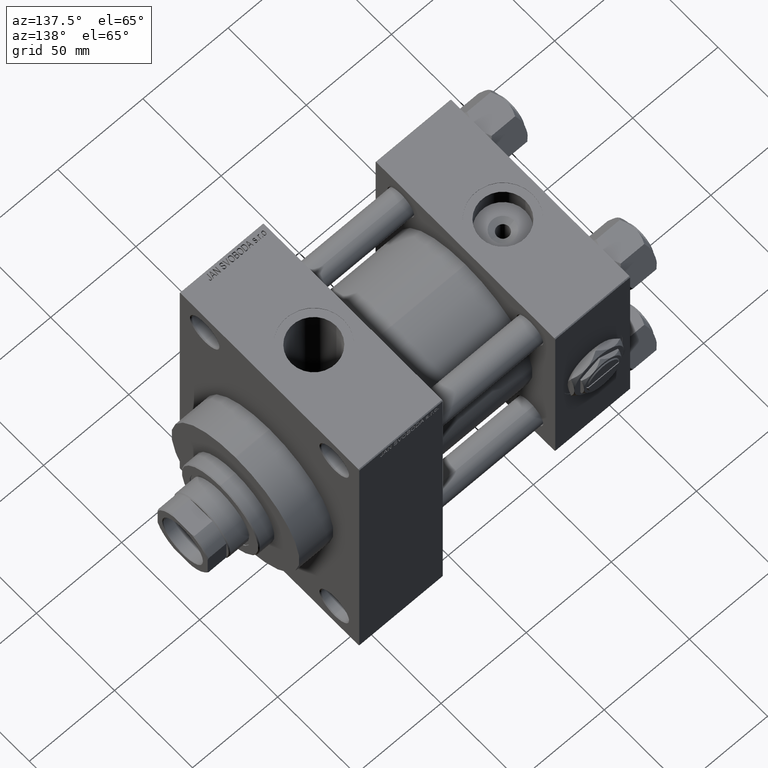
[diagram: clean part render]
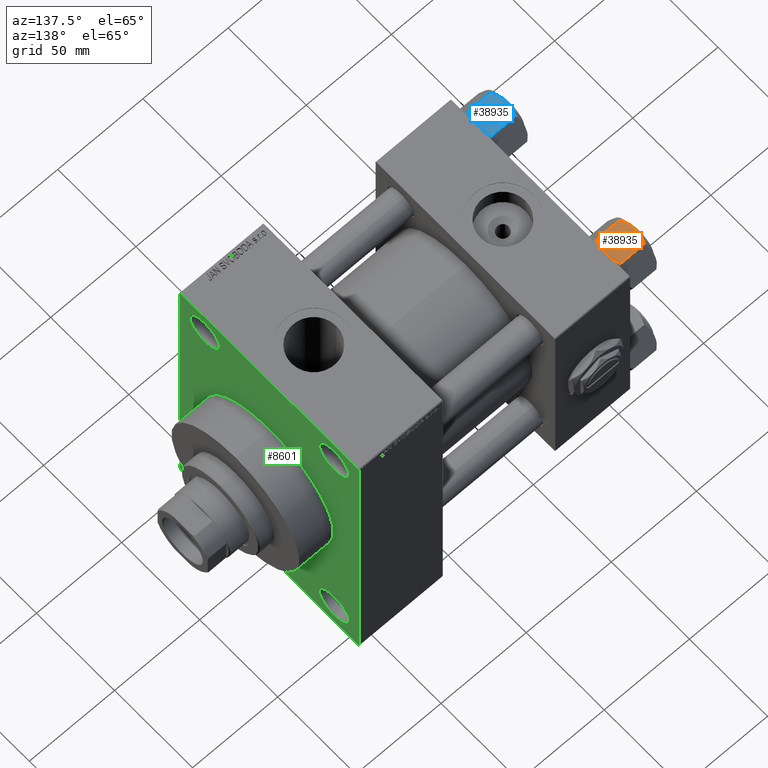
[diagram: same view with three faces highlighted in distinct colors, each labeled with its STEP entity id]
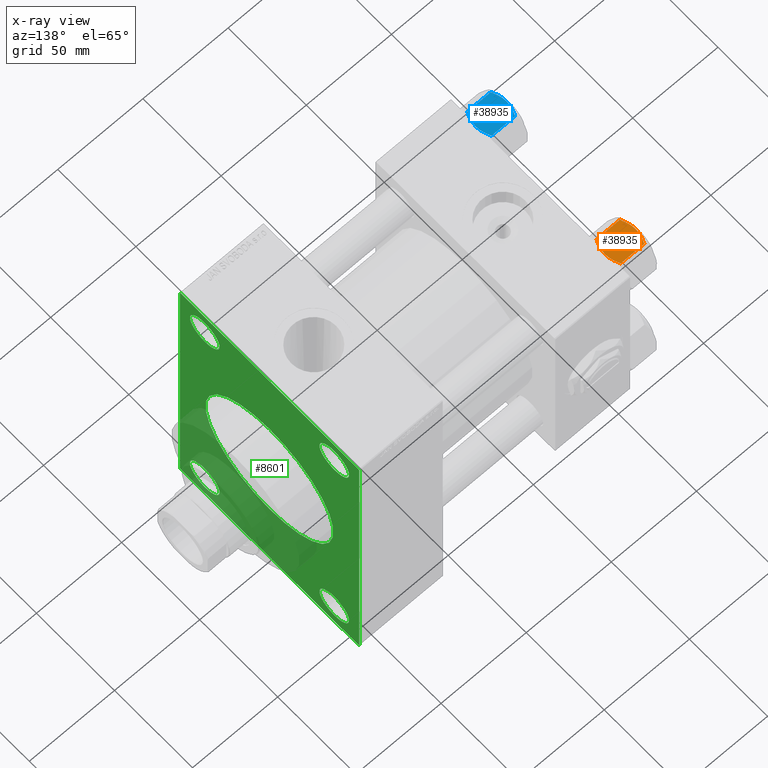
[diagram: x-ray of the same camera — body ghosted, the three highlighted faces saturated]
A machine part, auxiliary view with three faces highlighted in distinct colors.
The next image is the same camera in x-ray (body ghosted, the three faces saturated) — at least one of them is partly hidden behind the body in this view.
Their STEP definitions:

[orange] entity #38935 — the highlighted planar face has unit normal (0, -0, -1).
#1361 = PLANE ( 'NONE',  #46595 ) ;
#1496 = CARTESIAN_POINT ( 'NONE',  ( -5.189513245496330640, -13.52731680711293905, -0.9501108431732574466 ) ) ;
#1969 = ORIENTED_EDGE ( 'NONE', *, *, #4138, .T. ) ;
#1997 = CARTESIAN_POINT ( 'NONE',  ( 7.622943475354652776, -13.52731680711293372, -16.00000000000000000 ) ) ;
#3122 = CARTESIAN_POINT ( 'NONE',  ( 7.810000000000002274, -13.52731680711293372, -16.00000000000000000 ) ) ;
#3455 = CARTESIAN_POINT ( 'NONE',  ( 7.030203932307590442, -13.52731680711293727, -1.709001877891394017 ) ) ;
#4138 = EDGE_CURVE ( 'NONE', #7761, #24897, #47405, .T. ) ;
#4616 = CARTESIAN_POINT ( 'NONE',  ( 7.030888348548065103, -13.52731680711293194, -16.29066211644969897 ) ) ;
#4755 = CARTESIAN_POINT ( 'NONE',  ( -7.809999999999999609, -13.52731680711293727, -16.00000000000000000 ) ) ;
#5581 = FACE_OUTER_BOUND ( 'NONE', #13798, .T. ) ;
#5656 = CARTESIAN_POINT ( 'NONE',  ( 7.810000000000002274, -13.52731680711293372, -1.999999999999998224 ) ) ;
#5927 = CARTESIAN_POINT ( 'NONE',  ( 7.810000000000002274, -13.52731680711293372, -16.00000000000000000 ) ) ;
#6449 = CARTESIAN_POINT ( 'NONE',  ( 3.004629197474319246E-15, -13.52731680711293727, 0.000000000000000000 ) ) ;
#6563 = EDGE_CURVE ( 'NONE', #42354, #38716, #46723, .T. ) ;
#7090 = CARTESIAN_POINT ( 'NONE',  ( 7.810000000000002274, -13.52731680711293372, -1.999999999999998224 ) ) ;
#7359 = LINE ( 'NONE', #21899, #10741 ) ;
#7456 = CARTESIAN_POINT ( 'NONE',  ( 1.663410456966175843, -13.52731680711293372, -0.09804949135698878826 ) ) ;
#7707 = CARTESIAN_POINT ( 'NONE',  ( 3.287826776903156833, -13.52731680711293194, -0.3804584453753362960 ) ) ;
#7761 = VERTEX_POINT ( 'NONE', #5927 ) ;
#8237 = CARTESIAN_POINT ( 'NONE',  ( -4.553769687922305742, -13.52731680711294082, -0.7327291995145158721 ) ) ;
#8614 = CARTESIAN_POINT ( 'NONE',  ( 2.638177715023113379, -13.52731680711293549, -17.79984593233011481 ) ) ;
#8893 = CARTESIAN_POINT ( 'NONE',  ( 7.810000000000002274, -13.52731680711293372, -18.00000000000000000 ) ) ;
#9385 = DIRECTION ( 'NONE',  ( -0.000000000000000000, -0.000000000000000000, 1.000000000000000000 ) ) ;
#9572 = DIRECTION ( 'NONE',  ( -1.000000000000000000, -2.221156819432531199E-16, 0.000000000000000000 ) ) ;
#10730 = B_SPLINE_CURVE_WITH_KNOTS ( 'NONE', 3,
 ( #19518, #46781, #34773, #1496, #8237, #15745, #12504, #47264 ),
 .UNSPECIFIED., .F., .F.,
 ( 4, 2, 2, 4 ),
 ( 0.01980594295952729095, 0.02179054093496183425, 0.02377513891039637756, 0.02774433486126546416 ),
 .UNSPECIFIED. ) ;
#10741 = VECTOR ( 'NONE', #25896, 1000.000000000000000 ) ;
#12504 = CARTESIAN_POINT ( 'NONE',  ( -1.335584685993413956, -13.52731680711294082, 1.666960840196463265E-15 ) ) ;
#12618 = CARTESIAN_POINT ( 'NONE',  ( 1.335584685993418619, -13.52731680711293372, -18.00000000000000355 ) ) ;
#12765 = ORIENTED_EDGE ( 'NONE', *, *, #21408, .F. ) ;
#12769 = VECTOR ( 'NONE', #9385, 1000.000000000000000 ) ;
#13798 = EDGE_LOOP ( 'NONE', ( #30348, #1969, #36258, #45488, #31014, #41974, #12765, #40147, #38522, #15367 ) ) ;
#13841 = DIRECTION ( 'NONE',  ( 1.000000000000000000, 2.221156819432531199E-16, -0.000000000000000000 ) ) ;
#14962 = CARTESIAN_POINT ( 'NONE',  ( 2.644243758052992277, -13.52731680711293372, -0.2408281198023969893 ) ) ;
#15367 = ORIENTED_EDGE ( 'NONE', *, *, #44690, .F. ) ;
#15745 = CARTESIAN_POINT ( 'NONE',  ( -2.638177715023105385, -13.52731680711294082, -0.2001540676698838062 ) ) ;
#16023 = EDGE_CURVE ( 'NONE', #38716, #16299, #19141, .T. ) ;
#16191 = CARTESIAN_POINT ( 'NONE',  ( 3.004629197474319246E-15, -13.52731680711293727, -18.00000000000000000 ) ) ;
#16299 = VERTEX_POINT ( 'NONE', #4755 ) ;
#16680 = CARTESIAN_POINT ( 'NONE',  ( -7.622943475354647447, -13.52731680711293727, -2.000000000000000000 ) ) ;
#16856 = B_SPLINE_CURVE_WITH_KNOTS ( 'NONE', 3,
 ( #39881, #4616, #31645, #46893, #24126, #8614, #12618, #17105 ),
 .UNSPECIFIED., .F., .F.,
 ( 4, 2, 2, 4 ),
 ( 0.01980594295952729095, 0.02179054093496183078, 0.02377513891039637062, 0.02774433486126545376 ),
 .UNSPECIFIED. ) ;
#17101 = VERTEX_POINT ( 'NONE', #16680 ) ;
#17105 = CARTESIAN_POINT ( 'NONE',  ( 3.004629197474319246E-15, -13.52731680711293727, -18.00000000000000000 ) ) ;
#17253 = CARTESIAN_POINT ( 'NONE',  ( -0.6693083573771178019, -13.52731680711293727, -17.98750666918892449 ) ) ;
#18400 = DIRECTION ( 'NONE',  ( -1.000000000000000000, -2.221156819432531199E-16, 0.000000000000000000 ) ) ;
#18680 = VECTOR ( 'NONE', #18400, 1000.000000000000000 ) ;
#19141 = LINE ( 'NONE', #3122, #18680 ) ;
#19518 = CARTESIAN_POINT ( 'NONE',  ( -7.622943475354647447, -13.52731680711293727, -2.000000000000000000 ) ) ;
#20373 = DIRECTION ( 'NONE',  ( -2.221156819432531199E-16, 1.000000000000000000, 0.000000000000000000 ) ) ;
#20849 = CARTESIAN_POINT ( 'NONE',  ( 7.810000000000002274, -13.52731680711293372, -18.00000000000000000 ) ) ;
#21002 = CARTESIAN_POINT ( 'NONE',  ( 3.004629197474319246E-15, -13.52731680711293727, -18.00000000000000000 ) ) ;
#21251 = CARTESIAN_POINT ( 'NONE',  ( -3.287826776903149728, -13.52731680711293727, -17.61954155462466076 ) ) ;
#21408 = EDGE_CURVE ( 'NONE', #16299, #33431, #7359, .T. ) ;
#21613 = LINE ( 'NONE', #7090, #47973 ) ;
#21899 = CARTESIAN_POINT ( 'NONE',  ( -7.809999999999999609, -13.52731680711293727, -18.00000000000000000 ) ) ;
#22680 = LINE ( 'NONE', #41690, #40916 ) ;
#23215 = CARTESIAN_POINT ( 'NONE',  ( 0.6693083573771232420, -13.52731680711293372, -0.01249333081107902900 ) ) ;
#24126 = CARTESIAN_POINT ( 'NONE',  ( 4.553769687922309295, -13.52731680711293194, -17.26727080048548046 ) ) ;
#24761 = CARTESIAN_POINT ( 'NONE',  ( -1.333889873825130579, -13.52731680711293549, -17.93843358996560866 ) ) ;
#24897 = VERTEX_POINT ( 'NONE', #5656 ) ;
#25250 = CARTESIAN_POINT ( 'NONE',  ( -5.184073258379402027, -13.52731680711293905, -17.05185620934992130 ) ) ;
#25412 = EDGE_CURVE ( 'NONE', #17101, #45230, #10730, .T. ) ;
#25896 = DIRECTION ( 'NONE',  ( -0.000000000000000000, -0.000000000000000000, 1.000000000000000000 ) ) ;
#26479 = CARTESIAN_POINT ( 'NONE',  ( 5.184073258379408244, -13.52731680711293372, -0.9481437906500832513 ) ) ;
#26649 = VERTEX_POINT ( 'NONE', #35924 ) ;
#28427 = CARTESIAN_POINT ( 'NONE',  ( -7.622943475354647447, -13.52731680711293727, -16.00000000000000000 ) ) ;
#29262 = EDGE_CURVE ( 'NONE', #26649, #24897, #21613, .T. ) ;
#30348 = ORIENTED_EDGE ( 'NONE', *, *, #37460, .F. ) ;
#30485 = CARTESIAN_POINT ( 'NONE',  ( 6.422751913021828685, -13.52731680711293549, -1.436509110925896948 ) ) ;
#31014 = ORIENTED_EDGE ( 'NONE', *, *, #25412, .F. ) ;
#31308 = DIRECTION ( 'NONE',  ( 1.000000000000000000, 2.221156819432531199E-16, -0.000000000000000000 ) ) ;
#31645 = CARTESIAN_POINT ( 'NONE',  ( 6.427364677720476926, -13.52731680711293549, -16.56149306284486755 ) ) ;
#32517 = CARTESIAN_POINT ( 'NONE',  ( -2.644243758052987836, -13.52731680711293549, -17.75917188019760218 ) ) ;
#32994 = CARTESIAN_POINT ( 'NONE',  ( -4.557734399832409800, -13.52731680711293905, -17.26585298258849122 ) ) ;
#33431 = VERTEX_POINT ( 'NONE', #35845 ) ;
#33653 = EDGE_CURVE ( 'NONE', #45230, #26649, #36981, .T. ) ;
#34227 = CARTESIAN_POINT ( 'NONE',  ( 3.004629197474319246E-15, -13.52731680711293727, 0.000000000000000000 ) ) ;
#34474 = CARTESIAN_POINT ( 'NONE',  ( 4.557734399832416905, -13.52731680711293016, -0.7341470174115138914 ) ) ;
#34773 = CARTESIAN_POINT ( 'NONE',  ( -6.427364677720470709, -13.52731680711293727, -1.438506937155139109 ) ) ;
#35565 = CARTESIAN_POINT ( 'NONE',  ( 7.810000000000002274, -13.52731680711293372, -1.999999999999998224 ) ) ;
#35845 = CARTESIAN_POINT ( 'NONE',  ( -7.809999999999999609, -13.52731680711293727, -1.999999999999998224 ) ) ;
#35924 = CARTESIAN_POINT ( 'NONE',  ( 7.622943475354652776, -13.52731680711293372, -2.000000000000000000 ) ) ;
#36179 = VECTOR ( 'NONE', #31308, 1000.000000000000000 ) ;
#36258 = ORIENTED_EDGE ( 'NONE', *, *, #29262, .F. ) ;
#36272 = CARTESIAN_POINT ( 'NONE',  ( -1.663410456966171180, -13.52731680711293549, -17.90195050864300796 ) ) ;
#36981 = B_SPLINE_CURVE_WITH_KNOTS ( 'NONE', 3,
 ( #34227, #48985, #23215, #45482, #7456, #14962, #7707, #34474, #26479, #30485, #3455, #45983 ),
 .UNSPECIFIED., .F., .F.,
 ( 4, 2, 2, 2, 2, 4 ),
 ( 0.02774433486126546416, 0.02873404020403550266, 0.02972374554680554115, 0.03170315623234561814, 0.03368256691788569512, 0.03566197760342577211 ),
 .UNSPECIFIED. ) ;
#36992 = CARTESIAN_POINT ( 'NONE',  ( -6.422751913021825132, -13.52731680711293905, -16.56349088907410305 ) ) ;
#37460 = EDGE_CURVE ( 'NONE', #7761, #39148, #22680, .T. ) ;
#37929 = EDGE_CURVE ( 'NONE', #33431, #17101, #38814, .T. ) ;
#38522 = ORIENTED_EDGE ( 'NONE', *, *, #6563, .F. ) ;
#38716 = VERTEX_POINT ( 'NONE', #28427 ) ;
#38814 = LINE ( 'NONE', #35565, #36179 ) ;
#38935 = ADVANCED_FACE ( 'NONE', ( #5581 ), #1361, .F. ) ;
#39148 = VERTEX_POINT ( 'NONE', #1997 ) ;
#39881 = CARTESIAN_POINT ( 'NONE',  ( 7.622943475354652776, -13.52731680711293372, -16.00000000000000000 ) ) ;
#40147 = ORIENTED_EDGE ( 'NONE', *, *, #16023, .F. ) ;
#40700 = DIRECTION ( 'NONE',  ( -1.000000000000000000, -2.221156819432531199E-16, 0.000000000000000000 ) ) ;
#40753 = CARTESIAN_POINT ( 'NONE',  ( -7.030203932307581560, -13.52731680711293727, -16.29099812210860065 ) ) ;
#40916 = VECTOR ( 'NONE', #40700, 1000.000000000000000 ) ;
#41690 = CARTESIAN_POINT ( 'NONE',  ( 7.810000000000002274, -13.52731680711293372, -16.00000000000000000 ) ) ;
#41974 = ORIENTED_EDGE ( 'NONE', *, *, #37929, .F. ) ;
#42354 = VERTEX_POINT ( 'NONE', #16191 ) ;
#43767 = CARTESIAN_POINT ( 'NONE',  ( -0.3330234424833808937, -13.52731680711293372, -18.00000000000000711 ) ) ;
#44690 = EDGE_CURVE ( 'NONE', #39148, #42354, #16856, .T. ) ;
#45230 = VERTEX_POINT ( 'NONE', #6449 ) ;
#45482 = CARTESIAN_POINT ( 'NONE',  ( 1.333889873825135686, -13.52731680711293549, -0.06156641003439144999 ) ) ;
#45488 = ORIENTED_EDGE ( 'NONE', *, *, #33653, .F. ) ;
#45983 = CARTESIAN_POINT ( 'NONE',  ( 7.622943475354652776, -13.52731680711293372, -2.000000000000000000 ) ) ;
#46595 = AXIS2_PLACEMENT_3D ( 'NONE', #20849, #20373, #9572 ) ;
#46723 = B_SPLINE_CURVE_WITH_KNOTS ( 'NONE', 3,
 ( #21002, #43767, #17253, #24761, #36272, #32517, #21251, #32994, #25250, #36992, #40753, #47756 ),
 .UNSPECIFIED., .F., .F.,
 ( 4, 2, 2, 2, 2, 4 ),
 ( 0.02774433486126545376, 0.02873404020403549225, 0.02972374554680553074, 0.03170315623234560426, 0.03368256691788568125, 0.03566197760342575823 ),
 .UNSPECIFIED. ) ;
#46781 = CARTESIAN_POINT ( 'NONE',  ( -7.030888348548060662, -13.52731680711294082, -1.709337883550297699 ) ) ;
#46893 = CARTESIAN_POINT ( 'NONE',  ( 5.189513245496335969, -13.52731680711293194, -17.04988915682674033 ) ) ;
#47264 = CARTESIAN_POINT ( 'NONE',  ( 3.004629197474319246E-15, -13.52731680711293727, 0.000000000000000000 ) ) ;
#47405 = LINE ( 'NONE', #8893, #12769 ) ;
#47756 = CARTESIAN_POINT ( 'NONE',  ( -7.622943475354647447, -13.52731680711293727, -16.00000000000000000 ) ) ;
#47973 = VECTOR ( 'NONE', #13841, 1000.000000000000000 ) ;
#48985 = CARTESIAN_POINT ( 'NONE',  ( 0.3330234424833860007, -13.52731680711293727, 1.736982230502816853E-15 ) ) ;

[blue] entity #38935 — the highlighted planar face has unit normal (0, -0, -1).
#1361 = PLANE ( 'NONE',  #46595 ) ;
#1496 = CARTESIAN_POINT ( 'NONE',  ( -5.189513245496330640, -13.52731680711293905, -0.9501108431732574466 ) ) ;
#1969 = ORIENTED_EDGE ( 'NONE', *, *, #4138, .T. ) ;
#1997 = CARTESIAN_POINT ( 'NONE',  ( 7.622943475354652776, -13.52731680711293372, -16.00000000000000000 ) ) ;
#3122 = CARTESIAN_POINT ( 'NONE',  ( 7.810000000000002274, -13.52731680711293372, -16.00000000000000000 ) ) ;
#3455 = CARTESIAN_POINT ( 'NONE',  ( 7.030203932307590442, -13.52731680711293727, -1.709001877891394017 ) ) ;
#4138 = EDGE_CURVE ( 'NONE', #7761, #24897, #47405, .T. ) ;
#4616 = CARTESIAN_POINT ( 'NONE',  ( 7.030888348548065103, -13.52731680711293194, -16.29066211644969897 ) ) ;
#4755 = CARTESIAN_POINT ( 'NONE',  ( -7.809999999999999609, -13.52731680711293727, -16.00000000000000000 ) ) ;
#5581 = FACE_OUTER_BOUND ( 'NONE', #13798, .T. ) ;
#5656 = CARTESIAN_POINT ( 'NONE',  ( 7.810000000000002274, -13.52731680711293372, -1.999999999999998224 ) ) ;
#5927 = CARTESIAN_POINT ( 'NONE',  ( 7.810000000000002274, -13.52731680711293372, -16.00000000000000000 ) ) ;
#6449 = CARTESIAN_POINT ( 'NONE',  ( 3.004629197474319246E-15, -13.52731680711293727, 0.000000000000000000 ) ) ;
#6563 = EDGE_CURVE ( 'NONE', #42354, #38716, #46723, .T. ) ;
#7090 = CARTESIAN_POINT ( 'NONE',  ( 7.810000000000002274, -13.52731680711293372, -1.999999999999998224 ) ) ;
#7359 = LINE ( 'NONE', #21899, #10741 ) ;
#7456 = CARTESIAN_POINT ( 'NONE',  ( 1.663410456966175843, -13.52731680711293372, -0.09804949135698878826 ) ) ;
#7707 = CARTESIAN_POINT ( 'NONE',  ( 3.287826776903156833, -13.52731680711293194, -0.3804584453753362960 ) ) ;
#7761 = VERTEX_POINT ( 'NONE', #5927 ) ;
#8237 = CARTESIAN_POINT ( 'NONE',  ( -4.553769687922305742, -13.52731680711294082, -0.7327291995145158721 ) ) ;
#8614 = CARTESIAN_POINT ( 'NONE',  ( 2.638177715023113379, -13.52731680711293549, -17.79984593233011481 ) ) ;
#8893 = CARTESIAN_POINT ( 'NONE',  ( 7.810000000000002274, -13.52731680711293372, -18.00000000000000000 ) ) ;
#9385 = DIRECTION ( 'NONE',  ( -0.000000000000000000, -0.000000000000000000, 1.000000000000000000 ) ) ;
#9572 = DIRECTION ( 'NONE',  ( -1.000000000000000000, -2.221156819432531199E-16, 0.000000000000000000 ) ) ;
#10730 = B_SPLINE_CURVE_WITH_KNOTS ( 'NONE', 3,
 ( #19518, #46781, #34773, #1496, #8237, #15745, #12504, #47264 ),
 .UNSPECIFIED., .F., .F.,
 ( 4, 2, 2, 4 ),
 ( 0.01980594295952729095, 0.02179054093496183425, 0.02377513891039637756, 0.02774433486126546416 ),
 .UNSPECIFIED. ) ;
#10741 = VECTOR ( 'NONE', #25896, 1000.000000000000000 ) ;
#12504 = CARTESIAN_POINT ( 'NONE',  ( -1.335584685993413956, -13.52731680711294082, 1.666960840196463265E-15 ) ) ;
#12618 = CARTESIAN_POINT ( 'NONE',  ( 1.335584685993418619, -13.52731680711293372, -18.00000000000000355 ) ) ;
#12765 = ORIENTED_EDGE ( 'NONE', *, *, #21408, .F. ) ;
#12769 = VECTOR ( 'NONE', #9385, 1000.000000000000000 ) ;
#13798 = EDGE_LOOP ( 'NONE', ( #30348, #1969, #36258, #45488, #31014, #41974, #12765, #40147, #38522, #15367 ) ) ;
#13841 = DIRECTION ( 'NONE',  ( 1.000000000000000000, 2.221156819432531199E-16, -0.000000000000000000 ) ) ;
#14962 = CARTESIAN_POINT ( 'NONE',  ( 2.644243758052992277, -13.52731680711293372, -0.2408281198023969893 ) ) ;
#15367 = ORIENTED_EDGE ( 'NONE', *, *, #44690, .F. ) ;
#15745 = CARTESIAN_POINT ( 'NONE',  ( -2.638177715023105385, -13.52731680711294082, -0.2001540676698838062 ) ) ;
#16023 = EDGE_CURVE ( 'NONE', #38716, #16299, #19141, .T. ) ;
#16191 = CARTESIAN_POINT ( 'NONE',  ( 3.004629197474319246E-15, -13.52731680711293727, -18.00000000000000000 ) ) ;
#16299 = VERTEX_POINT ( 'NONE', #4755 ) ;
#16680 = CARTESIAN_POINT ( 'NONE',  ( -7.622943475354647447, -13.52731680711293727, -2.000000000000000000 ) ) ;
#16856 = B_SPLINE_CURVE_WITH_KNOTS ( 'NONE', 3,
 ( #39881, #4616, #31645, #46893, #24126, #8614, #12618, #17105 ),
 .UNSPECIFIED., .F., .F.,
 ( 4, 2, 2, 4 ),
 ( 0.01980594295952729095, 0.02179054093496183078, 0.02377513891039637062, 0.02774433486126545376 ),
 .UNSPECIFIED. ) ;
#17101 = VERTEX_POINT ( 'NONE', #16680 ) ;
#17105 = CARTESIAN_POINT ( 'NONE',  ( 3.004629197474319246E-15, -13.52731680711293727, -18.00000000000000000 ) ) ;
#17253 = CARTESIAN_POINT ( 'NONE',  ( -0.6693083573771178019, -13.52731680711293727, -17.98750666918892449 ) ) ;
#18400 = DIRECTION ( 'NONE',  ( -1.000000000000000000, -2.221156819432531199E-16, 0.000000000000000000 ) ) ;
#18680 = VECTOR ( 'NONE', #18400, 1000.000000000000000 ) ;
#19141 = LINE ( 'NONE', #3122, #18680 ) ;
#19518 = CARTESIAN_POINT ( 'NONE',  ( -7.622943475354647447, -13.52731680711293727, -2.000000000000000000 ) ) ;
#20373 = DIRECTION ( 'NONE',  ( -2.221156819432531199E-16, 1.000000000000000000, 0.000000000000000000 ) ) ;
#20849 = CARTESIAN_POINT ( 'NONE',  ( 7.810000000000002274, -13.52731680711293372, -18.00000000000000000 ) ) ;
#21002 = CARTESIAN_POINT ( 'NONE',  ( 3.004629197474319246E-15, -13.52731680711293727, -18.00000000000000000 ) ) ;
#21251 = CARTESIAN_POINT ( 'NONE',  ( -3.287826776903149728, -13.52731680711293727, -17.61954155462466076 ) ) ;
#21408 = EDGE_CURVE ( 'NONE', #16299, #33431, #7359, .T. ) ;
#21613 = LINE ( 'NONE', #7090, #47973 ) ;
#21899 = CARTESIAN_POINT ( 'NONE',  ( -7.809999999999999609, -13.52731680711293727, -18.00000000000000000 ) ) ;
#22680 = LINE ( 'NONE', #41690, #40916 ) ;
#23215 = CARTESIAN_POINT ( 'NONE',  ( 0.6693083573771232420, -13.52731680711293372, -0.01249333081107902900 ) ) ;
#24126 = CARTESIAN_POINT ( 'NONE',  ( 4.553769687922309295, -13.52731680711293194, -17.26727080048548046 ) ) ;
#24761 = CARTESIAN_POINT ( 'NONE',  ( -1.333889873825130579, -13.52731680711293549, -17.93843358996560866 ) ) ;
#24897 = VERTEX_POINT ( 'NONE', #5656 ) ;
#25250 = CARTESIAN_POINT ( 'NONE',  ( -5.184073258379402027, -13.52731680711293905, -17.05185620934992130 ) ) ;
#25412 = EDGE_CURVE ( 'NONE', #17101, #45230, #10730, .T. ) ;
#25896 = DIRECTION ( 'NONE',  ( -0.000000000000000000, -0.000000000000000000, 1.000000000000000000 ) ) ;
#26479 = CARTESIAN_POINT ( 'NONE',  ( 5.184073258379408244, -13.52731680711293372, -0.9481437906500832513 ) ) ;
#26649 = VERTEX_POINT ( 'NONE', #35924 ) ;
#28427 = CARTESIAN_POINT ( 'NONE',  ( -7.622943475354647447, -13.52731680711293727, -16.00000000000000000 ) ) ;
#29262 = EDGE_CURVE ( 'NONE', #26649, #24897, #21613, .T. ) ;
#30348 = ORIENTED_EDGE ( 'NONE', *, *, #37460, .F. ) ;
#30485 = CARTESIAN_POINT ( 'NONE',  ( 6.422751913021828685, -13.52731680711293549, -1.436509110925896948 ) ) ;
#31014 = ORIENTED_EDGE ( 'NONE', *, *, #25412, .F. ) ;
#31308 = DIRECTION ( 'NONE',  ( 1.000000000000000000, 2.221156819432531199E-16, -0.000000000000000000 ) ) ;
#31645 = CARTESIAN_POINT ( 'NONE',  ( 6.427364677720476926, -13.52731680711293549, -16.56149306284486755 ) ) ;
#32517 = CARTESIAN_POINT ( 'NONE',  ( -2.644243758052987836, -13.52731680711293549, -17.75917188019760218 ) ) ;
#32994 = CARTESIAN_POINT ( 'NONE',  ( -4.557734399832409800, -13.52731680711293905, -17.26585298258849122 ) ) ;
#33431 = VERTEX_POINT ( 'NONE', #35845 ) ;
#33653 = EDGE_CURVE ( 'NONE', #45230, #26649, #36981, .T. ) ;
#34227 = CARTESIAN_POINT ( 'NONE',  ( 3.004629197474319246E-15, -13.52731680711293727, 0.000000000000000000 ) ) ;
#34474 = CARTESIAN_POINT ( 'NONE',  ( 4.557734399832416905, -13.52731680711293016, -0.7341470174115138914 ) ) ;
#34773 = CARTESIAN_POINT ( 'NONE',  ( -6.427364677720470709, -13.52731680711293727, -1.438506937155139109 ) ) ;
#35565 = CARTESIAN_POINT ( 'NONE',  ( 7.810000000000002274, -13.52731680711293372, -1.999999999999998224 ) ) ;
#35845 = CARTESIAN_POINT ( 'NONE',  ( -7.809999999999999609, -13.52731680711293727, -1.999999999999998224 ) ) ;
#35924 = CARTESIAN_POINT ( 'NONE',  ( 7.622943475354652776, -13.52731680711293372, -2.000000000000000000 ) ) ;
#36179 = VECTOR ( 'NONE', #31308, 1000.000000000000000 ) ;
#36258 = ORIENTED_EDGE ( 'NONE', *, *, #29262, .F. ) ;
#36272 = CARTESIAN_POINT ( 'NONE',  ( -1.663410456966171180, -13.52731680711293549, -17.90195050864300796 ) ) ;
#36981 = B_SPLINE_CURVE_WITH_KNOTS ( 'NONE', 3,
 ( #34227, #48985, #23215, #45482, #7456, #14962, #7707, #34474, #26479, #30485, #3455, #45983 ),
 .UNSPECIFIED., .F., .F.,
 ( 4, 2, 2, 2, 2, 4 ),
 ( 0.02774433486126546416, 0.02873404020403550266, 0.02972374554680554115, 0.03170315623234561814, 0.03368256691788569512, 0.03566197760342577211 ),
 .UNSPECIFIED. ) ;
#36992 = CARTESIAN_POINT ( 'NONE',  ( -6.422751913021825132, -13.52731680711293905, -16.56349088907410305 ) ) ;
#37460 = EDGE_CURVE ( 'NONE', #7761, #39148, #22680, .T. ) ;
#37929 = EDGE_CURVE ( 'NONE', #33431, #17101, #38814, .T. ) ;
#38522 = ORIENTED_EDGE ( 'NONE', *, *, #6563, .F. ) ;
#38716 = VERTEX_POINT ( 'NONE', #28427 ) ;
#38814 = LINE ( 'NONE', #35565, #36179 ) ;
#38935 = ADVANCED_FACE ( 'NONE', ( #5581 ), #1361, .F. ) ;
#39148 = VERTEX_POINT ( 'NONE', #1997 ) ;
#39881 = CARTESIAN_POINT ( 'NONE',  ( 7.622943475354652776, -13.52731680711293372, -16.00000000000000000 ) ) ;
#40147 = ORIENTED_EDGE ( 'NONE', *, *, #16023, .F. ) ;
#40700 = DIRECTION ( 'NONE',  ( -1.000000000000000000, -2.221156819432531199E-16, 0.000000000000000000 ) ) ;
#40753 = CARTESIAN_POINT ( 'NONE',  ( -7.030203932307581560, -13.52731680711293727, -16.29099812210860065 ) ) ;
#40916 = VECTOR ( 'NONE', #40700, 1000.000000000000000 ) ;
#41690 = CARTESIAN_POINT ( 'NONE',  ( 7.810000000000002274, -13.52731680711293372, -16.00000000000000000 ) ) ;
#41974 = ORIENTED_EDGE ( 'NONE', *, *, #37929, .F. ) ;
#42354 = VERTEX_POINT ( 'NONE', #16191 ) ;
#43767 = CARTESIAN_POINT ( 'NONE',  ( -0.3330234424833808937, -13.52731680711293372, -18.00000000000000711 ) ) ;
#44690 = EDGE_CURVE ( 'NONE', #39148, #42354, #16856, .T. ) ;
#45230 = VERTEX_POINT ( 'NONE', #6449 ) ;
#45482 = CARTESIAN_POINT ( 'NONE',  ( 1.333889873825135686, -13.52731680711293549, -0.06156641003439144999 ) ) ;
#45488 = ORIENTED_EDGE ( 'NONE', *, *, #33653, .F. ) ;
#45983 = CARTESIAN_POINT ( 'NONE',  ( 7.622943475354652776, -13.52731680711293372, -2.000000000000000000 ) ) ;
#46595 = AXIS2_PLACEMENT_3D ( 'NONE', #20849, #20373, #9572 ) ;
#46723 = B_SPLINE_CURVE_WITH_KNOTS ( 'NONE', 3,
 ( #21002, #43767, #17253, #24761, #36272, #32517, #21251, #32994, #25250, #36992, #40753, #47756 ),
 .UNSPECIFIED., .F., .F.,
 ( 4, 2, 2, 2, 2, 4 ),
 ( 0.02774433486126545376, 0.02873404020403549225, 0.02972374554680553074, 0.03170315623234560426, 0.03368256691788568125, 0.03566197760342575823 ),
 .UNSPECIFIED. ) ;
#46781 = CARTESIAN_POINT ( 'NONE',  ( -7.030888348548060662, -13.52731680711294082, -1.709337883550297699 ) ) ;
#46893 = CARTESIAN_POINT ( 'NONE',  ( 5.189513245496335969, -13.52731680711293194, -17.04988915682674033 ) ) ;
#47264 = CARTESIAN_POINT ( 'NONE',  ( 3.004629197474319246E-15, -13.52731680711293727, 0.000000000000000000 ) ) ;
#47405 = LINE ( 'NONE', #8893, #12769 ) ;
#47756 = CARTESIAN_POINT ( 'NONE',  ( -7.622943475354647447, -13.52731680711293727, -16.00000000000000000 ) ) ;
#47973 = VECTOR ( 'NONE', #13841, 1000.000000000000000 ) ;
#48985 = CARTESIAN_POINT ( 'NONE',  ( 0.3330234424833860007, -13.52731680711293727, 1.736982230502816853E-15 ) ) ;

[green] entity #8601 — the highlighted planar face has unit normal (-1, 0, 0).
#5 = CARTESIAN_POINT ( 'NONE',  ( 159.0000000000000000, -41.49999999999999289, 74.50000000000001421 ) ) ;
#57 = EDGE_CURVE ( 'NONE', #41054, #19076, #13792, .T. ) ;
#70 = EDGE_LOOP ( 'NONE', ( #42168, #2164 ) ) ;
#251 = DIRECTION ( 'NONE',  ( 0.000000000000000000, 0.000000000000000000, 1.000000000000000000 ) ) ;
#347 = DIRECTION ( 'NONE',  ( 0.000000000000000000, 0.000000000000000000, -1.000000000000000000 ) ) ;
#488 = DIRECTION ( 'NONE',  ( -1.000000000000000000, 0.000000000000000000, -0.000000000000000000 ) ) ;
#948 = VERTEX_POINT ( 'NONE', #14362 ) ;
#1008 = ORIENTED_EDGE ( 'NONE', *, *, #2485, .T. ) ;
#1154 = CIRCLE ( 'NONE', #29089, 9.500000000000008882 ) ;
#1434 = CARTESIAN_POINT ( 'NONE',  ( 159.0000000000000000, 57.49999999999997158, 89.49999999999995737 ) ) ;
#1777 = ORIENTED_EDGE ( 'NONE', *, *, #41689, .T. ) ;
#1979 = ORIENTED_EDGE ( 'NONE', *, *, #14007, .F. ) ;
#2164 = ORIENTED_EDGE ( 'NONE', *, *, #10290, .T. ) ;
#2485 = EDGE_CURVE ( 'NONE', #24132, #16879, #13475, .T. ) ;
#3033 = FACE_BOUND ( 'NONE', #70, .T. ) ;
#3557 = EDGE_CURVE ( 'NONE', #948, #22493, #15104, .T. ) ;
#3749 = DIRECTION ( 'NONE',  ( 0.000000000000000000, 0.000000000000000000, 1.000000000000000000 ) ) ;
#3869 = ORIENTED_EDGE ( 'NONE', *, *, #41647, .T. ) ;
#4331 = DIRECTION ( 'NONE',  ( 1.000000000000000000, 0.000000000000000000, 0.000000000000000000 ) ) ;
#5174 = LINE ( 'NONE', #47191, #17145 ) ;
#5410 = DIRECTION ( 'NONE',  ( -1.000000000000000000, 0.000000000000000000, -0.000000000000000000 ) ) ;
#6053 = FACE_BOUND ( 'NONE', #39013, .T. ) ;
#6168 = AXIS2_PLACEMENT_3D ( 'NONE', #27371, #38370, #42622 ) ;
#6522 = VERTEX_POINT ( 'NONE', #40262 ) ;
#7408 = LINE ( 'NONE', #41448, #29719 ) ;
#7480 = AXIS2_PLACEMENT_3D ( 'NONE', #11053, #18322, #18835 ) ;
#7520 = AXIS2_PLACEMENT_3D ( 'NONE', #23261, #26774, #46027 ) ;
#7786 = CARTESIAN_POINT ( 'NONE',  ( 159.0000000000000000, 56.99999999999994316, 89.99999999999998579 ) ) ;
#7832 = ORIENTED_EDGE ( 'NONE', *, *, #40178, .T. ) ;
#7923 = AXIS2_PLACEMENT_3D ( 'NONE', #32043, #40032, #35547 ) ;
#8295 = CARTESIAN_POINT ( 'NONE',  ( 159.0000000000000000, -57.50000000000002132, 89.49999999999994316 ) ) ;
#8308 = EDGE_CURVE ( 'NONE', #18009, #20301, #31993, .T. ) ;
#8575 = LINE ( 'NONE', #12818, #46744 ) ;
#8601 = ADVANCED_FACE ( 'NONE', ( #22064, #44814, #3033, #33558, #6053, #48322 ), #36576, .F. ) ;
#9231 = CARTESIAN_POINT ( 'NONE',  ( 159.0000000000000000, -57.50000000000002132, 89.49999999999994316 ) ) ;
#9574 = EDGE_CURVE ( 'NONE', #17108, #41054, #11545, .T. ) ;
#9902 = CIRCLE ( 'NONE', #7520, 9.500000000000008882 ) ;
#10053 = CARTESIAN_POINT ( 'NONE',  ( 159.0000000000000000, 57.49999999999997158, 89.99999999999998579 ) ) ;
#10288 = DIRECTION ( 'NONE',  ( -1.000000000000000000, 0.000000000000000000, -0.000000000000000000 ) ) ;
#10290 = EDGE_CURVE ( 'NONE', #42377, #40142, #19264, .T. ) ;
#10954 = CIRCLE ( 'NONE', #6168, 9.500000000000008882 ) ;
#11053 = CARTESIAN_POINT ( 'NONE',  ( 159.0000000000000000, -41.49999999999999289, 74.50000000000001421 ) ) ;
#11484 = CARTESIAN_POINT ( 'NONE',  ( 159.0000000000000000, 41.50000000000000711, -74.50000000000000000 ) ) ;
#11520 = CIRCLE ( 'NONE', #17911, 9.500000000000008882 ) ;
#11545 = LINE ( 'NONE', #7786, #14456 ) ;
#11640 = VERTEX_POINT ( 'NONE', #25501 ) ;
#11751 = DIRECTION ( 'NONE',  ( -1.000000000000000000, 0.000000000000000000, -0.000000000000000000 ) ) ;
#11987 = EDGE_CURVE ( 'NONE', #14636, #24132, #7408, .T. ) ;
#12124 = ORIENTED_EDGE ( 'NONE', *, *, #9574, .T. ) ;
#12159 = DIRECTION ( 'NONE',  ( 0.000000000000000000, 0.000000000000000000, 1.000000000000000000 ) ) ;
#12818 = CARTESIAN_POINT ( 'NONE',  ( 159.0000000000000000, 57.49999999999997868, -90.00000000000000000 ) ) ;
#13276 = VERTEX_POINT ( 'NONE', #14302 ) ;
#13475 = LINE ( 'NONE', #28748, #26264 ) ;
#13518 = ORIENTED_EDGE ( 'NONE', *, *, #21259, .F. ) ;
#13535 = DIRECTION ( 'NONE',  ( 0.000000000000000000, -1.000000000000000000, -1.206764157201257045E-16 ) ) ;
#13572 = ORIENTED_EDGE ( 'NONE', *, *, #57, .T. ) ;
#13792 = LINE ( 'NONE', #10053, #33021 ) ;
#13815 = CARTESIAN_POINT ( 'NONE',  ( 159.0000000000000000, -41.49999999999999289, -64.99999999999997158 ) ) ;
#14007 = EDGE_CURVE ( 'NONE', #20301, #18009, #31408, .T. ) ;
#14055 = ORIENTED_EDGE ( 'NONE', *, *, #34914, .T. ) ;
#14302 = CARTESIAN_POINT ( 'NONE',  ( 159.0000000000000000, 41.50000000000000711, 84.00000000000001421 ) ) ;
#14362 = CARTESIAN_POINT ( 'NONE',  ( 159.0000000000000000, -41.49999999999999289, -83.99999999999998579 ) ) ;
#14456 = VECTOR ( 'NONE', #34554, 1000.000000000000114 ) ;
#14636 = VERTEX_POINT ( 'NONE', #9231 ) ;
#15104 = CIRCLE ( 'NONE', #7923, 9.500000000000008882 ) ;
#15297 = LINE ( 'NONE', #8295, #28781 ) ;
#15907 = CARTESIAN_POINT ( 'NONE',  ( 159.0000000000000000, 41.50000000000000711, -74.50000000000000000 ) ) ;
#16683 = CARTESIAN_POINT ( 'NONE',  ( 159.0000000000000000, 57.49999999999997868, -89.49999999999990052 ) ) ;
#16879 = VERTEX_POINT ( 'NONE', #32924 ) ;
#17031 = CIRCLE ( 'NONE', #44975, 9.500000000000008882 ) ;
#17108 = VERTEX_POINT ( 'NONE', #1434 ) ;
#17145 = VECTOR ( 'NONE', #32426, 1000.000000000000000 ) ;
#17338 = ORIENTED_EDGE ( 'NONE', *, *, #28035, .T. ) ;
#17911 = AXIS2_PLACEMENT_3D ( 'NONE', #34268, #19269, #251 ) ;
#18009 = VERTEX_POINT ( 'NONE', #43449 ) ;
#18322 = DIRECTION ( 'NONE',  ( -1.000000000000000000, 0.000000000000000000, -0.000000000000000000 ) ) ;
#18835 = DIRECTION ( 'NONE',  ( 0.000000000000000000, 0.000000000000000000, 1.000000000000000000 ) ) ;
#19076 = VERTEX_POINT ( 'NONE', #35665 ) ;
#19264 = CIRCLE ( 'NONE', #47226, 9.500000000000008882 ) ;
#19269 = DIRECTION ( 'NONE',  ( -1.000000000000000000, 0.000000000000000000, -0.000000000000000000 ) ) ;
#19346 = VERTEX_POINT ( 'NONE', #42601 ) ;
#20301 = VERTEX_POINT ( 'NONE', #35182 ) ;
#21259 = EDGE_CURVE ( 'NONE', #17108, #35529, #5174, .T. ) ;
#21317 = CARTESIAN_POINT ( 'NONE',  ( 159.0000000000000000, 0.000000000000000000, 0.000000000000000000 ) ) ;
#21525 = DIRECTION ( 'NONE',  ( -0.000000000000000000, 0.7071067811865574537, 0.7071067811865376918 ) ) ;
#21974 = CARTESIAN_POINT ( 'NONE',  ( 159.0000000000000000, 56.99999999999992895, -90.00000000000000000 ) ) ;
#22064 = FACE_BOUND ( 'NONE', #47511, .T. ) ;
#22319 = ORIENTED_EDGE ( 'NONE', *, *, #11987, .T. ) ;
#22493 = VERTEX_POINT ( 'NONE', #13815 ) ;
#22947 = CARTESIAN_POINT ( 'NONE',  ( 159.0000000000000000, 56.99999999999994316, 89.99999999999998579 ) ) ;
#23261 = CARTESIAN_POINT ( 'NONE',  ( 159.0000000000000000, 41.50000000000000711, 74.50000000000001421 ) ) ;
#24132 = VERTEX_POINT ( 'NONE', #33831 ) ;
#24591 = CARTESIAN_POINT ( 'NONE',  ( 159.0000000000000000, 0.000000000000000000, 0.000000000000000000 ) ) ;
#24801 = CARTESIAN_POINT ( 'NONE',  ( 159.0000000000000000, 57.49999999999997868, -89.49999999999995737 ) ) ;
#25122 = EDGE_LOOP ( 'NONE', ( #3869, #44416 ) ) ;
#25501 = CARTESIAN_POINT ( 'NONE',  ( 159.0000000000000000, -41.49999999999999289, 65.00000000000000000 ) ) ;
#25573 = AXIS2_PLACEMENT_3D ( 'NONE', #26867, #38870, #347 ) ;
#25603 = ORIENTED_EDGE ( 'NONE', *, *, #3557, .T. ) ;
#25742 = ORIENTED_EDGE ( 'NONE', *, *, #8308, .F. ) ;
#26264 = VECTOR ( 'NONE', #36989, 999.9999999999998863 ) ;
#26764 = EDGE_CURVE ( 'NONE', #22493, #948, #10954, .T. ) ;
#26774 = DIRECTION ( 'NONE',  ( -1.000000000000000000, 0.000000000000000000, -0.000000000000000000 ) ) ;
#26867 = CARTESIAN_POINT ( 'NONE',  ( 159.0000000000000000, 0.000000000000000000, 0.000000000000000000 ) ) ;
#27326 = DIRECTION ( 'NONE',  ( -0.000000000000000000, -0.7071067811865524577, -0.7071067811865426878 ) ) ;
#27371 = CARTESIAN_POINT ( 'NONE',  ( 159.0000000000000000, -41.49999999999999289, -74.49999999999998579 ) ) ;
#28035 = EDGE_CURVE ( 'NONE', #19076, #14636, #15297, .T. ) ;
#28564 = LINE ( 'NONE', #24801, #30494 ) ;
#28748 = CARTESIAN_POINT ( 'NONE',  ( 159.0000000000000000, -56.99999999999996447, -90.00000000000001421 ) ) ;
#28781 = VECTOR ( 'NONE', #27326, 1000.000000000000000 ) ;
#29089 = AXIS2_PLACEMENT_3D ( 'NONE', #5, #11751, #3749 ) ;
#29719 = VECTOR ( 'NONE', #45195, 1000.000000000000000 ) ;
#30494 = VECTOR ( 'NONE', #21525, 999.9999999999998863 ) ;
#31044 = ORIENTED_EDGE ( 'NONE', *, *, #26764, .T. ) ;
#31408 = CIRCLE ( 'NONE', #41753, 41.00000000000000000 ) ;
#31710 = VERTEX_POINT ( 'NONE', #21974 ) ;
#31993 = CIRCLE ( 'NONE', #25573, 41.00000000000000000 ) ;
#32033 = AXIS2_PLACEMENT_3D ( 'NONE', #21317, #10288, #40827 ) ;
#32043 = CARTESIAN_POINT ( 'NONE',  ( 159.0000000000000000, -41.49999999999999289, -74.49999999999998579 ) ) ;
#32426 = DIRECTION ( 'NONE',  ( 0.000000000000000000, 3.854941057726238467E-17, -1.000000000000000000 ) ) ;
#32924 = CARTESIAN_POINT ( 'NONE',  ( 159.0000000000000000, -56.99999999999996447, -90.00000000000001421 ) ) ;
#33021 = VECTOR ( 'NONE', #47356, 1000.000000000000000 ) ;
#33558 = FACE_BOUND ( 'NONE', #25122, .T. ) ;
#33831 = CARTESIAN_POINT ( 'NONE',  ( 159.0000000000000000, -57.50000000000002132, -89.49999999999991473 ) ) ;
#34081 = CARTESIAN_POINT ( 'NONE',  ( 159.0000000000000000, 41.50000000000000711, -84.00000000000000000 ) ) ;
#34268 = CARTESIAN_POINT ( 'NONE',  ( 159.0000000000000000, 41.50000000000000711, 74.50000000000001421 ) ) ;
#34554 = DIRECTION ( 'NONE',  ( 0.000000000000000000, -0.7071067811865474617, 0.7071067811865474617 ) ) ;
#34861 = DIRECTION ( 'NONE',  ( 0.000000000000000000, 0.000000000000000000, -1.000000000000000000 ) ) ;
#34914 = EDGE_CURVE ( 'NONE', #31710, #35529, #28564, .T. ) ;
#35182 = CARTESIAN_POINT ( 'NONE',  ( 159.0000000000000000, 5.021051876504148963E-15, -41.00000000000000000 ) ) ;
#35529 = VERTEX_POINT ( 'NONE', #16683 ) ;
#35547 = DIRECTION ( 'NONE',  ( 0.000000000000000000, 0.000000000000000000, 1.000000000000000000 ) ) ;
#35665 = CARTESIAN_POINT ( 'NONE',  ( 159.0000000000000000, -56.99999999999998579, 89.99999999999997158 ) ) ;
#35717 = ORIENTED_EDGE ( 'NONE', *, *, #46847, .F. ) ;
#36576 = PLANE ( 'NONE',  #32033 ) ;
#36989 = DIRECTION ( 'NONE',  ( 0.000000000000000000, 0.7071067811865574537, -0.7071067811865376918 ) ) ;
#37841 = CIRCLE ( 'NONE', #7480, 9.500000000000008882 ) ;
#38370 = DIRECTION ( 'NONE',  ( -1.000000000000000000, 0.000000000000000000, -0.000000000000000000 ) ) ;
#38870 = DIRECTION ( 'NONE',  ( 1.000000000000000000, 0.000000000000000000, 0.000000000000000000 ) ) ;
#39013 = EDGE_LOOP ( 'NONE', ( #25742, #1979 ) ) ;
#39222 = CARTESIAN_POINT ( 'NONE',  ( 159.0000000000000000, 41.50000000000000711, -64.99999999999998579 ) ) ;
#39677 = EDGE_CURVE ( 'NONE', #40142, #42377, #17031, .T. ) ;
#40032 = DIRECTION ( 'NONE',  ( -1.000000000000000000, 0.000000000000000000, -0.000000000000000000 ) ) ;
#40096 = EDGE_LOOP ( 'NONE', ( #22319, #1008, #35717, #14055, #13518, #12124, #13572, #17338 ) ) ;
#40142 = VERTEX_POINT ( 'NONE', #34081 ) ;
#40178 = EDGE_CURVE ( 'NONE', #11640, #19346, #37841, .T. ) ;
#40262 = CARTESIAN_POINT ( 'NONE',  ( 159.0000000000000000, 41.50000000000000711, 65.00000000000000000 ) ) ;
#40827 = DIRECTION ( 'NONE',  ( -0.000000000000000000, 0.000000000000000000, 1.000000000000000000 ) ) ;
#41054 = VERTEX_POINT ( 'NONE', #22947 ) ;
#41448 = CARTESIAN_POINT ( 'NONE',  ( 159.0000000000000000, -57.50000000000002132, 89.99999999999997158 ) ) ;
#41647 = EDGE_CURVE ( 'NONE', #6522, #13276, #9902, .T. ) ;
#41689 = EDGE_CURVE ( 'NONE', #19346, #11640, #1154, .T. ) ;
#41724 = EDGE_CURVE ( 'NONE', #13276, #6522, #11520, .T. ) ;
#41753 = AXIS2_PLACEMENT_3D ( 'NONE', #24591, #4331, #34861 ) ;
#42168 = ORIENTED_EDGE ( 'NONE', *, *, #39677, .T. ) ;
#42377 = VERTEX_POINT ( 'NONE', #39222 ) ;
#42601 = CARTESIAN_POINT ( 'NONE',  ( 159.0000000000000000, -41.49999999999999289, 84.00000000000001421 ) ) ;
#42622 = DIRECTION ( 'NONE',  ( 0.000000000000000000, 0.000000000000000000, 1.000000000000000000 ) ) ;
#43449 = CARTESIAN_POINT ( 'NONE',  ( 159.0000000000000000, 0.000000000000000000, 41.00000000000000000 ) ) ;
#43630 = EDGE_LOOP ( 'NONE', ( #25603, #31044 ) ) ;
#44416 = ORIENTED_EDGE ( 'NONE', *, *, #41724, .T. ) ;
#44814 = FACE_BOUND ( 'NONE', #43630, .T. ) ;
#44975 = AXIS2_PLACEMENT_3D ( 'NONE', #11484, #488, #45507 ) ;
#45195 = DIRECTION ( 'NONE',  ( 0.000000000000000000, 0.000000000000000000, -1.000000000000000000 ) ) ;
#45507 = DIRECTION ( 'NONE',  ( 0.000000000000000000, 0.000000000000000000, 1.000000000000000000 ) ) ;
#46027 = DIRECTION ( 'NONE',  ( 0.000000000000000000, 0.000000000000000000, 1.000000000000000000 ) ) ;
#46744 = VECTOR ( 'NONE', #13535, 1000.000000000000000 ) ;
#46847 = EDGE_CURVE ( 'NONE', #31710, #16879, #8575, .T. ) ;
#47191 = CARTESIAN_POINT ( 'NONE',  ( 159.0000000000000000, 57.49999999999997158, 89.99999999999998579 ) ) ;
#47226 = AXIS2_PLACEMENT_3D ( 'NONE', #15907, #5410, #12159 ) ;
#47356 = DIRECTION ( 'NONE',  ( 0.000000000000000000, -1.000000000000000000, -1.206764157201257291E-16 ) ) ;
#47511 = EDGE_LOOP ( 'NONE', ( #7832, #1777 ) ) ;
#48322 = FACE_OUTER_BOUND ( 'NONE', #40096, .T. ) ;